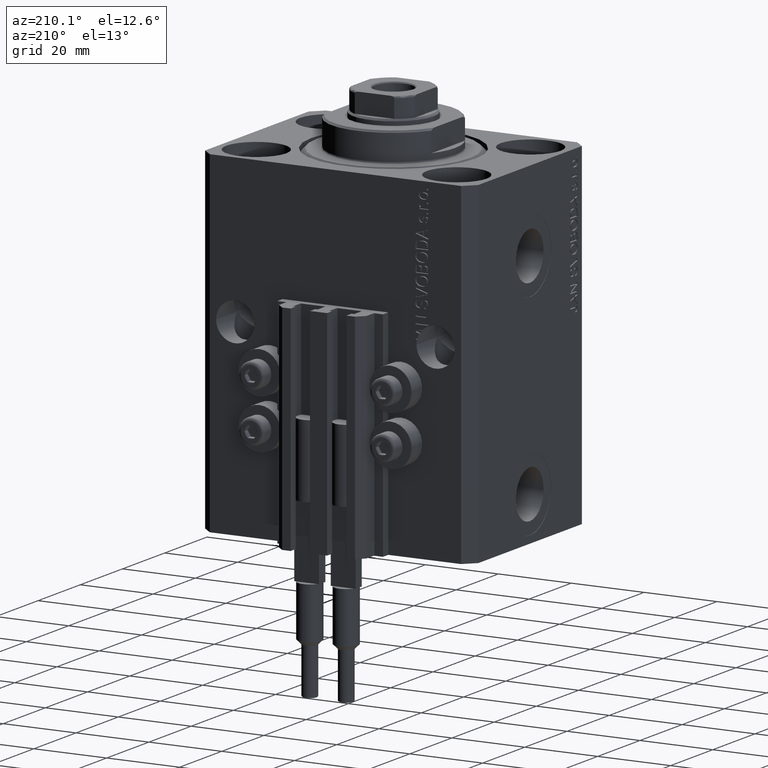
[diagram: clean part render]
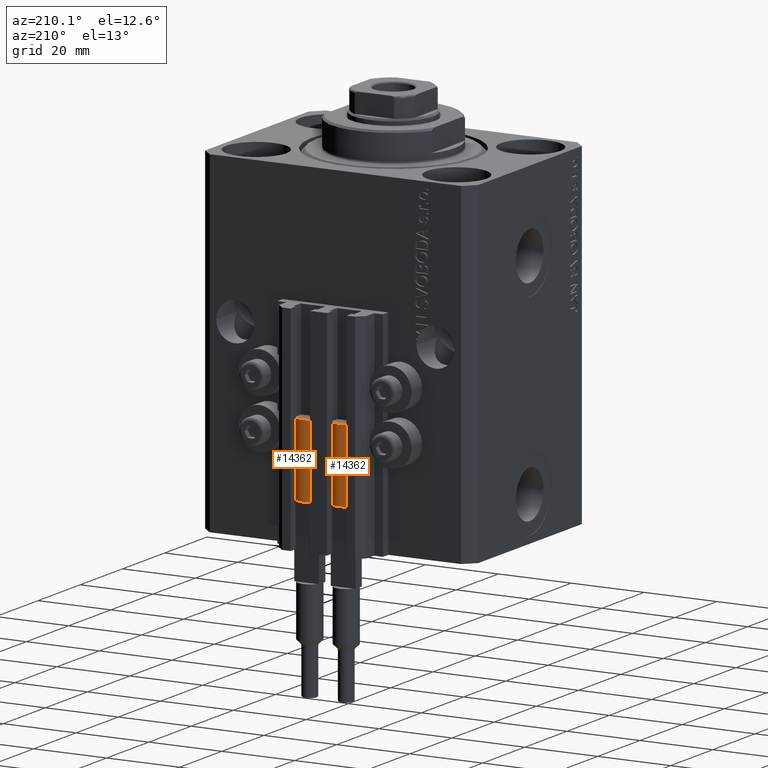
[diagram: same view with one multi-face feature highlighted, each face labeled with its STEP entity id]
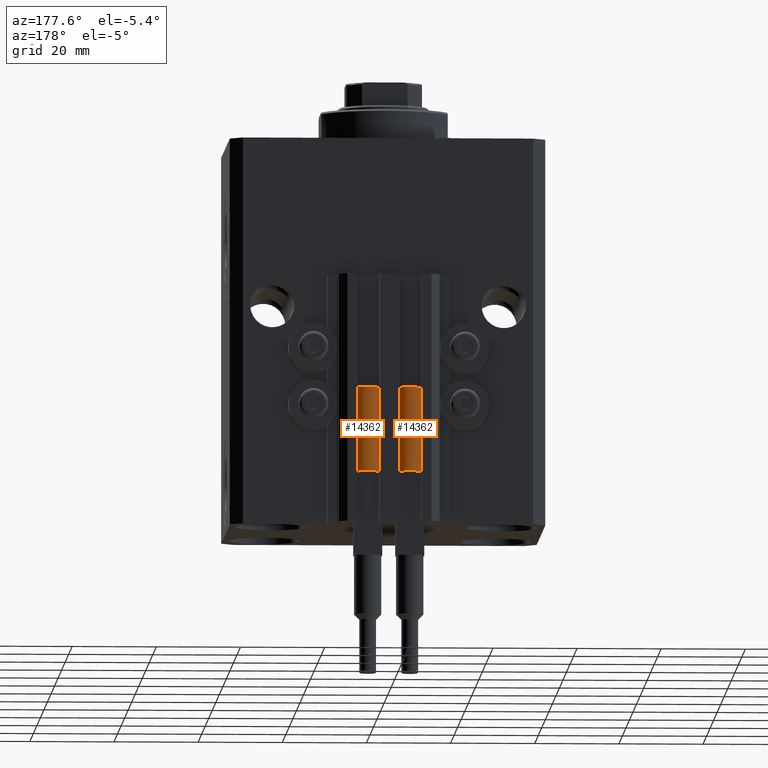
[diagram: same view with one multi-face feature highlighted, each face labeled with its STEP entity id]
A machine part, auxiliary view. The highlighted faces form ONE feature: a constant-radius fillet chain: 2 tangent blend faces with common blend radius 3.4 mm. The faces share edges in the B-rep.
A second angle (auxiliary view) of the same feature is appended — it is thin or edge-on in the first view.
Their STEP definitions:
[1] entity #14362 (Cylinder):
#1143 = VERTEX_POINT ( 'NONE', #9092 ) ;
#1691 = VECTOR ( 'NONE', #6336, 1000.000000000000000 ) ;
#1924 = CIRCLE ( 'NONE', #28396, 3.400000000000000355 ) ;
#3101 = DIRECTION ( 'NONE',  ( 0.000000000000000000, 0.000000000000000000, 1.000000000000000000 ) ) ;
#4142 = DIRECTION ( 'NONE',  ( 1.000000000000000000, 0.000000000000000000, 0.000000000000000000 ) ) ;
#4374 = AXIS2_PLACEMENT_3D ( 'NONE', #12798, #17392, #20110 ) ;
#5635 = AXIS2_PLACEMENT_3D ( 'NONE', #35776, #3101, #32138 ) ;
#5972 = CARTESIAN_POINT ( 'NONE',  ( -3.399999999999999467, -4.915049848600952119E-16, 20.00000000000000000 ) ) ;
#6336 = DIRECTION ( 'NONE',  ( -0.000000000000000000, -0.000000000000000000, -1.000000000000000000 ) ) ;
#6617 = VERTEX_POINT ( 'NONE', #35486 ) ;
#8205 = DIRECTION ( 'NONE',  ( -0.000000000000000000, -0.000000000000000000, -1.000000000000000000 ) ) ;
#8601 = ORIENTED_EDGE ( 'NONE', *, *, #10371, .T. ) ;
#9092 = CARTESIAN_POINT ( 'NONE',  ( -3.051229260478471428, 1.500000000000000000, 20.00000000000000000 ) ) ;
#9775 = VERTEX_POINT ( 'NONE', #20644 ) ;
#10371 = EDGE_CURVE ( 'NONE', #17010, #9775, #1924, .T. ) ;
#10650 = ORIENTED_EDGE ( 'NONE', *, *, #30744, .T. ) ;
#11617 = ORIENTED_EDGE ( 'NONE', *, *, #19662, .F. ) ;
#12798 = CARTESIAN_POINT ( 'NONE',  ( 0.000000000000000000, 0.000000000000000000, 20.00000000000000000 ) ) ;
#13632 = LINE ( 'NONE', #17756, #1691 ) ;
#14362 = ADVANCED_FACE ( 'NONE', ( #16923 ), #28382, .T. ) ;
#15260 = CARTESIAN_POINT ( 'NONE',  ( -3.400000000000000355, 0.000000000000000000, 20.00000000000000000 ) ) ;
#16923 = FACE_OUTER_BOUND ( 'NONE', #21410, .T. ) ;
#17010 = VERTEX_POINT ( 'NONE', #23082 ) ;
#17384 = VECTOR ( 'NONE', #8205, 1000.000000000000000 ) ;
#17392 = DIRECTION ( 'NONE',  ( -0.000000000000000000, -0.000000000000000000, -1.000000000000000000 ) ) ;
#17756 = CARTESIAN_POINT ( 'NONE',  ( 3.400000000000000355, 4.163799117101001052E-16, 20.00000000000000000 ) ) ;
#18683 = VERTEX_POINT ( 'NONE', #5972 ) ;
#19402 = LINE ( 'NONE', #15260, #17384 ) ;
#19662 = EDGE_CURVE ( 'NONE', #1143, #18683, #32435, .T. ) ;
#20110 = DIRECTION ( 'NONE',  ( -1.000000000000000000, 0.000000000000000000, 0.000000000000000000 ) ) ;
#20407 = CIRCLE ( 'NONE', #5635, 3.400000000000000355 ) ;
#20644 = CARTESIAN_POINT ( 'NONE',  ( -3.400000000000000355, 0.000000000000000000, 0.000000000000000000 ) ) ;
#21293 = CIRCLE ( 'NONE', #36073, 3.400000000000000355 ) ;
#21410 = EDGE_LOOP ( 'NONE', ( #44450, #10650, #8601, #40786, #11617, #47090 ) ) ;
#22870 = DIRECTION ( 'NONE',  ( 1.000000000000000000, 0.000000000000000000, 0.000000000000000000 ) ) ;
#23082 = CARTESIAN_POINT ( 'NONE',  ( 3.400000000000000355, 4.163799117101001052E-16, 0.000000000000000000 ) ) ;
#25914 = CARTESIAN_POINT ( 'NONE',  ( 0.000000000000000000, 0.000000000000000000, 20.00000000000000000 ) ) ;
#26556 = DIRECTION ( 'NONE',  ( 0.000000000000000000, 0.000000000000000000, 1.000000000000000000 ) ) ;
#28382 = CYLINDRICAL_SURFACE ( 'NONE', #4374, 3.400000000000000355 ) ;
#28396 = AXIS2_PLACEMENT_3D ( 'NONE', #30190, #47534, #22870 ) ;
#30190 = CARTESIAN_POINT ( 'NONE',  ( 0.000000000000000000, 0.000000000000000000, 0.000000000000000000 ) ) ;
#30744 = EDGE_CURVE ( 'NONE', #32568, #17010, #13632, .T. ) ;
#32138 = DIRECTION ( 'NONE',  ( 1.000000000000000000, 0.000000000000000000, 0.000000000000000000 ) ) ;
#32435 = CIRCLE ( 'NONE', #45671, 3.400000000000000355 ) ;
#32568 = VERTEX_POINT ( 'NONE', #35309 ) ;
#32588 = EDGE_CURVE ( 'NONE', #6617, #1143, #20407, .T. ) ;
#35309 = CARTESIAN_POINT ( 'NONE',  ( 3.400000000000000355, 0.000000000000000000, 20.00000000000000000 ) ) ;
#35486 = CARTESIAN_POINT ( 'NONE',  ( 3.051229260478471428, 1.500000000000000000, 20.00000000000000000 ) ) ;
#35776 = CARTESIAN_POINT ( 'NONE',  ( 0.000000000000000000, 0.000000000000000000, 20.00000000000000000 ) ) ;
#36073 = AXIS2_PLACEMENT_3D ( 'NONE', #44353, #26556, #4142 ) ;
#36873 = DIRECTION ( 'NONE',  ( 0.000000000000000000, 0.000000000000000000, 1.000000000000000000 ) ) ;
#38029 = EDGE_CURVE ( 'NONE', #18683, #9775, #19402, .T. ) ;
#40786 = ORIENTED_EDGE ( 'NONE', *, *, #38029, .F. ) ;
#41316 = EDGE_CURVE ( 'NONE', #32568, #6617, #21293, .T. ) ;
#44353 = CARTESIAN_POINT ( 'NONE',  ( 0.000000000000000000, 0.000000000000000000, 20.00000000000000000 ) ) ;
#44443 = DIRECTION ( 'NONE',  ( 1.000000000000000000, 0.000000000000000000, 0.000000000000000000 ) ) ;
#44450 = ORIENTED_EDGE ( 'NONE', *, *, #41316, .F. ) ;
#45671 = AXIS2_PLACEMENT_3D ( 'NONE', #25914, #36873, #44443 ) ;
#47090 = ORIENTED_EDGE ( 'NONE', *, *, #32588, .F. ) ;
#47534 = DIRECTION ( 'NONE',  ( 0.000000000000000000, 0.000000000000000000, 1.000000000000000000 ) ) ;
[2] entity #14362 (Cylinder):
#1143 = VERTEX_POINT ( 'NONE', #9092 ) ;
#1691 = VECTOR ( 'NONE', #6336, 1000.000000000000000 ) ;
#1924 = CIRCLE ( 'NONE', #28396, 3.400000000000000355 ) ;
#3101 = DIRECTION ( 'NONE',  ( 0.000000000000000000, 0.000000000000000000, 1.000000000000000000 ) ) ;
#4142 = DIRECTION ( 'NONE',  ( 1.000000000000000000, 0.000000000000000000, 0.000000000000000000 ) ) ;
#4374 = AXIS2_PLACEMENT_3D ( 'NONE', #12798, #17392, #20110 ) ;
#5635 = AXIS2_PLACEMENT_3D ( 'NONE', #35776, #3101, #32138 ) ;
#5972 = CARTESIAN_POINT ( 'NONE',  ( -3.399999999999999467, -4.915049848600952119E-16, 20.00000000000000000 ) ) ;
#6336 = DIRECTION ( 'NONE',  ( -0.000000000000000000, -0.000000000000000000, -1.000000000000000000 ) ) ;
#6617 = VERTEX_POINT ( 'NONE', #35486 ) ;
#8205 = DIRECTION ( 'NONE',  ( -0.000000000000000000, -0.000000000000000000, -1.000000000000000000 ) ) ;
#8601 = ORIENTED_EDGE ( 'NONE', *, *, #10371, .T. ) ;
#9092 = CARTESIAN_POINT ( 'NONE',  ( -3.051229260478471428, 1.500000000000000000, 20.00000000000000000 ) ) ;
#9775 = VERTEX_POINT ( 'NONE', #20644 ) ;
#10371 = EDGE_CURVE ( 'NONE', #17010, #9775, #1924, .T. ) ;
#10650 = ORIENTED_EDGE ( 'NONE', *, *, #30744, .T. ) ;
#11617 = ORIENTED_EDGE ( 'NONE', *, *, #19662, .F. ) ;
#12798 = CARTESIAN_POINT ( 'NONE',  ( 0.000000000000000000, 0.000000000000000000, 20.00000000000000000 ) ) ;
#13632 = LINE ( 'NONE', #17756, #1691 ) ;
#14362 = ADVANCED_FACE ( 'NONE', ( #16923 ), #28382, .T. ) ;
#15260 = CARTESIAN_POINT ( 'NONE',  ( -3.400000000000000355, 0.000000000000000000, 20.00000000000000000 ) ) ;
#16923 = FACE_OUTER_BOUND ( 'NONE', #21410, .T. ) ;
#17010 = VERTEX_POINT ( 'NONE', #23082 ) ;
#17384 = VECTOR ( 'NONE', #8205, 1000.000000000000000 ) ;
#17392 = DIRECTION ( 'NONE',  ( -0.000000000000000000, -0.000000000000000000, -1.000000000000000000 ) ) ;
#17756 = CARTESIAN_POINT ( 'NONE',  ( 3.400000000000000355, 4.163799117101001052E-16, 20.00000000000000000 ) ) ;
#18683 = VERTEX_POINT ( 'NONE', #5972 ) ;
#19402 = LINE ( 'NONE', #15260, #17384 ) ;
#19662 = EDGE_CURVE ( 'NONE', #1143, #18683, #32435, .T. ) ;
#20110 = DIRECTION ( 'NONE',  ( -1.000000000000000000, 0.000000000000000000, 0.000000000000000000 ) ) ;
#20407 = CIRCLE ( 'NONE', #5635, 3.400000000000000355 ) ;
#20644 = CARTESIAN_POINT ( 'NONE',  ( -3.400000000000000355, 0.000000000000000000, 0.000000000000000000 ) ) ;
#21293 = CIRCLE ( 'NONE', #36073, 3.400000000000000355 ) ;
#21410 = EDGE_LOOP ( 'NONE', ( #44450, #10650, #8601, #40786, #11617, #47090 ) ) ;
#22870 = DIRECTION ( 'NONE',  ( 1.000000000000000000, 0.000000000000000000, 0.000000000000000000 ) ) ;
#23082 = CARTESIAN_POINT ( 'NONE',  ( 3.400000000000000355, 4.163799117101001052E-16, 0.000000000000000000 ) ) ;
#25914 = CARTESIAN_POINT ( 'NONE',  ( 0.000000000000000000, 0.000000000000000000, 20.00000000000000000 ) ) ;
#26556 = DIRECTION ( 'NONE',  ( 0.000000000000000000, 0.000000000000000000, 1.000000000000000000 ) ) ;
#28382 = CYLINDRICAL_SURFACE ( 'NONE', #4374, 3.400000000000000355 ) ;
#28396 = AXIS2_PLACEMENT_3D ( 'NONE', #30190, #47534, #22870 ) ;
#30190 = CARTESIAN_POINT ( 'NONE',  ( 0.000000000000000000, 0.000000000000000000, 0.000000000000000000 ) ) ;
#30744 = EDGE_CURVE ( 'NONE', #32568, #17010, #13632, .T. ) ;
#32138 = DIRECTION ( 'NONE',  ( 1.000000000000000000, 0.000000000000000000, 0.000000000000000000 ) ) ;
#32435 = CIRCLE ( 'NONE', #45671, 3.400000000000000355 ) ;
#32568 = VERTEX_POINT ( 'NONE', #35309 ) ;
#32588 = EDGE_CURVE ( 'NONE', #6617, #1143, #20407, .T. ) ;
#35309 = CARTESIAN_POINT ( 'NONE',  ( 3.400000000000000355, 0.000000000000000000, 20.00000000000000000 ) ) ;
#35486 = CARTESIAN_POINT ( 'NONE',  ( 3.051229260478471428, 1.500000000000000000, 20.00000000000000000 ) ) ;
#35776 = CARTESIAN_POINT ( 'NONE',  ( 0.000000000000000000, 0.000000000000000000, 20.00000000000000000 ) ) ;
#36073 = AXIS2_PLACEMENT_3D ( 'NONE', #44353, #26556, #4142 ) ;
#36873 = DIRECTION ( 'NONE',  ( 0.000000000000000000, 0.000000000000000000, 1.000000000000000000 ) ) ;
#38029 = EDGE_CURVE ( 'NONE', #18683, #9775, #19402, .T. ) ;
#40786 = ORIENTED_EDGE ( 'NONE', *, *, #38029, .F. ) ;
#41316 = EDGE_CURVE ( 'NONE', #32568, #6617, #21293, .T. ) ;
#44353 = CARTESIAN_POINT ( 'NONE',  ( 0.000000000000000000, 0.000000000000000000, 20.00000000000000000 ) ) ;
#44443 = DIRECTION ( 'NONE',  ( 1.000000000000000000, 0.000000000000000000, 0.000000000000000000 ) ) ;
#44450 = ORIENTED_EDGE ( 'NONE', *, *, #41316, .F. ) ;
#45671 = AXIS2_PLACEMENT_3D ( 'NONE', #25914, #36873, #44443 ) ;
#47090 = ORIENTED_EDGE ( 'NONE', *, *, #32588, .F. ) ;
#47534 = DIRECTION ( 'NONE',  ( 0.000000000000000000, 0.000000000000000000, 1.000000000000000000 ) ) ;